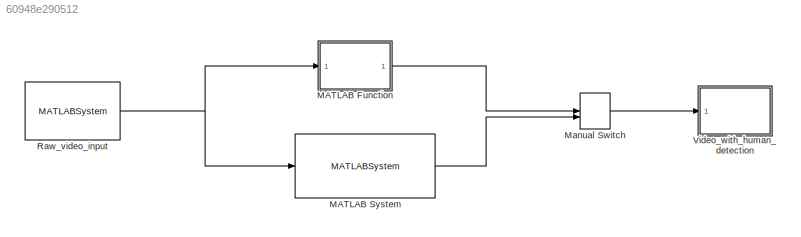
MODEL slx_60948e290512
KIND model
CONFIG AbsTol = auto
CONFIG EnableMultiTasking = off
CONFIG FixedStep = 0.2
CONFIG InitFcn = coeffStds = [0.002995595096857,0.076600147330248,0.631288082601997,0.002600128777275,0.073641936476251,0.984567040148445];\ncoeffMeans = [-1.939450143265110e-04,1.557727430093527e-04,1.473991581706893,-1.909623131136531e-04,0.004474616468621,-1.378729416735388];\nIsize = single(zeros(227,227));
CONFIG MaxStep = auto
CONFIG MinStep = auto
CONFIG RelTol = 1e-3
CONFIG SampleTimeConstraint = Unconstrained
CONFIG SolverName = FixedStepAuto
CONFIG StartTime = 0.0
CONFIG StopTime = 20
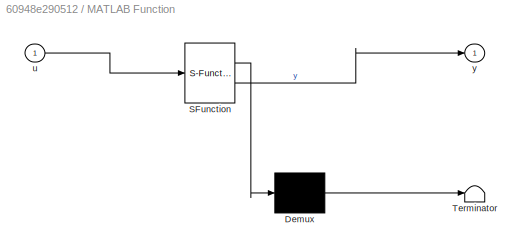
BLOCK [SubSystem] MATLAB Function
  ErrorFcn = Stateflow.Translate.translate
  PermitHierarchicalResolution = ExplicitOnly
  Ports = [1, 1]
  RequestExecContextInheritance = off
  SFBlockType = MATLAB Function
  TreatAsAtomicUnit = on
BLOCK [Demux] MATLAB Function/ Demux 
  Outputs = 1
  Ports = [1, 1]
BLOCK [S-Function] MATLAB Function/ SFunction 
  EnableBusSupport = on
  FunctionName = sf_sfun
  PortCounts = [1 2]
  Ports = [1, 2]
  SFcnIsStateOwnerBlock = off
  SFunctionDeploymentMode = off
  Tag = Stateflow S-Function 2
BLOCK [Terminator] MATLAB Function/ Terminator 
BLOCK [Inport] MATLAB Function/u
BLOCK [Outport] MATLAB Function/y
BLOCK [MATLABSystem] MATLAB System
  MaskDisplay = disp('python_HumanDetector');\nport_label('input',1,'u');\nport_label('output',1,'y');
  MaskType = python_HumanDetector
  Ports = [1, 1]
  SimulateUsing = Interpreted execution
  System = python_HumanDetector
BLOCK [ManualSwitch] Manual Switch
  CurrentSetting = 0
BLOCK [MATLABSystem] Raw_video_input
  MaskDisplay = disp('videoReader');\nport_label('output',1,'y');
  MaskType = videoReader
  Ports = [0, 1]
  SimulateUsing = Interpreted execution
  System = videoReader
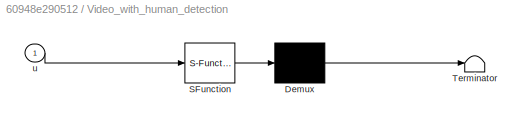
BLOCK [SubSystem] Video_with_human_detection
  ErrorFcn = Stateflow.Translate.translate
  PermitHierarchicalResolution = ExplicitOnly
  Ports = [1]
  RequestExecContextInheritance = off
  SFBlockType = MATLAB Function
  TreatAsAtomicUnit = on
BLOCK [Demux] Video_with_human_detection/ Demux 
  Outputs = 1
  Ports = [1, 1]
BLOCK [S-Function] Video_with_human_detection/ SFunction 
  EnableBusSupport = on
  FunctionName = sf_sfun
  PortCounts = [1 1]
  Ports = [1, 1]
  SFcnIsStateOwnerBlock = off
  SFunctionDeploymentMode = off
  Tag = Stateflow S-Function 3
BLOCK [Terminator] Video_with_human_detection/ Terminator 
BLOCK [Inport] Video_with_human_detection/u
LINE MATLAB Function:1 -> Manual Switch:1
LINE MATLAB System:1 -> Manual Switch:2
LINE Manual Switch:1 -> Video_with_human_detection:1
NET Raw_video_input:1 -> MATLAB Function:1, MATLAB System:1
note: NET lines group one-source signal fan-out (src -> all destinations, sorted); 1:1 wires keep LINE
CHART Video_with_human_detection states=1 transitions=1
  STATE_LABEL 'eML_blk_kernel()'
  STATE_LABEL "SCRIPT:\nfunction fcn(u)\n    coder.extrinsic('imagesc');\n    imagesc(u);\n    drawnow\n"
CHART MATLAB Function states=1 transitions=1
  STATE_LABEL 'eML_blk_kernel()'
  STATE_LABEL "SCRIPT:\nfunction y = fcn(u)\n    coder.extrinsic('py.detectHuman.getHogObject')\n    coder.extrinsic('py.detectHuman.detectHumanFromFrame')\n    \n    persistent hog;\n    if isempty(hog)\n        hog = py.detectHuman.getHogObject();\n    end\n    \n    out = py.detectHuman.detectHumanFromFrame(u, hog);\n    \n    y = uint8(out);\nend"
CHART  states=0 transitions=0
CHART  states=0 transitions=0
